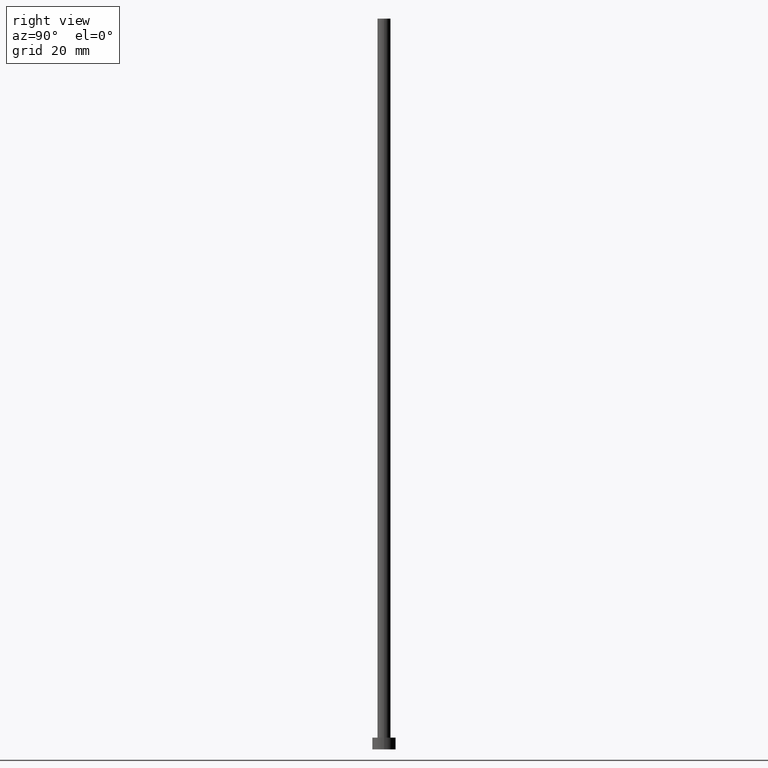
[diagram: clean part render]
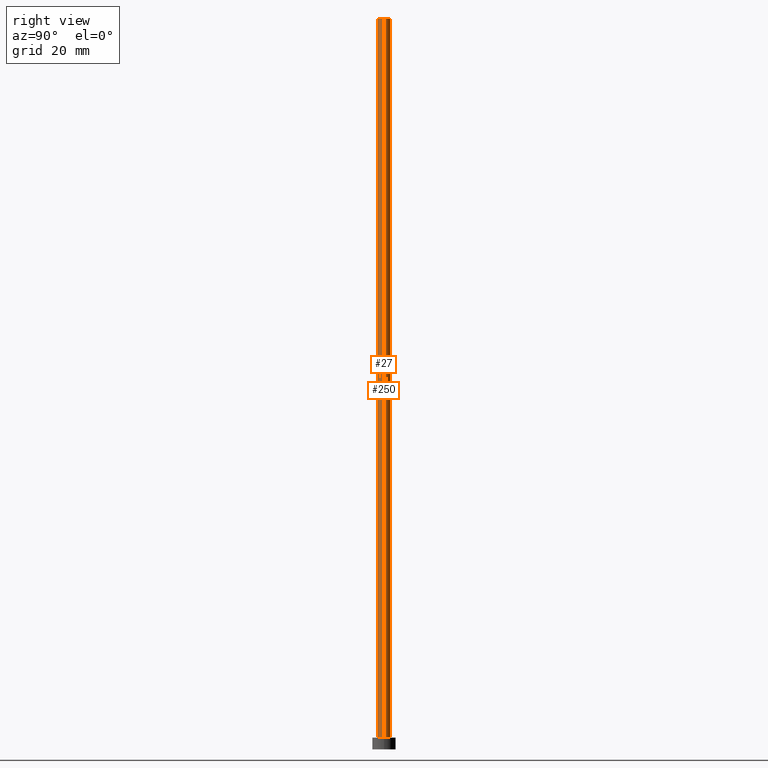
[diagram: same view with one multi-face feature highlighted, each face labeled with its STEP entity id]
A machine part, right view. The highlighted faces form ONE feature: a constant-radius fillet chain: 2 tangent blend faces with common blend radius 2.25 mm. The faces share edges in the B-rep.
Their STEP definitions:
[1] entity #27 (Cylinder):
#2 = LINE ( 'NONE', #218, #221 ) ;
#5 = ORIENTED_EDGE ( 'NONE', *, *, #186, .F. ) ;
#12 = EDGE_CURVE ( 'NONE', #191, #164, #29, .T. ) ;
#16 = CIRCLE ( 'NONE', #187, 2.250000000000000000 ) ;
#18 = VERTEX_POINT ( 'NONE', #127 ) ;
#27 = ADVANCED_FACE ( 'NONE', ( #76 ), #236, .T. ) ;
#29 = LINE ( 'NONE', #133, #193 ) ;
#39 = DIRECTION ( 'NONE',  ( -0.000000000000000000, -0.000000000000000000, -1.000000000000000000 ) ) ;
#48 = ORIENTED_EDGE ( 'NONE', *, *, #12, .T. ) ;
#64 = CARTESIAN_POINT ( 'NONE',  ( 0.000000000000000000, 0.000000000000000000, 4.000000000000000000 ) ) ;
#65 = VERTEX_POINT ( 'NONE', #184 ) ;
#71 = DIRECTION ( 'NONE',  ( -0.000000000000000000, -0.000000000000000000, -1.000000000000000000 ) ) ;
#76 = FACE_OUTER_BOUND ( 'NONE', #143, .T. ) ;
#80 = AXIS2_PLACEMENT_3D ( 'NONE', #214, #106, #176 ) ;
#106 = DIRECTION ( 'NONE',  ( -0.000000000000000000, -0.000000000000000000, -1.000000000000000000 ) ) ;
#108 = AXIS2_PLACEMENT_3D ( 'NONE', #198, #159, #141 ) ;
#115 = CARTESIAN_POINT ( 'NONE',  ( -2.250000000000000000, 0.000000000000000000, 250.0000000000000000 ) ) ;
#116 = CIRCLE ( 'NONE', #108, 2.250000000000000000 ) ;
#127 = CARTESIAN_POINT ( 'NONE',  ( 2.250000000000000000, 2.755455298081544285E-16, 4.000000000000000000 ) ) ;
#133 = CARTESIAN_POINT ( 'NONE',  ( -2.250000000000000000, 0.000000000000000000, 250.0000000000000000 ) ) ;
#136 = DIRECTION ( 'NONE',  ( 1.000000000000000000, 0.000000000000000000, 0.000000000000000000 ) ) ;
#141 = DIRECTION ( 'NONE',  ( 1.000000000000000000, 0.000000000000000000, 0.000000000000000000 ) ) ;
#143 = EDGE_LOOP ( 'NONE', ( #173, #5, #48, #223 ) ) ;
#159 = DIRECTION ( 'NONE',  ( 0.000000000000000000, 0.000000000000000000, 1.000000000000000000 ) ) ;
#164 = VERTEX_POINT ( 'NONE', #178 ) ;
#173 = ORIENTED_EDGE ( 'NONE', *, *, #232, .F. ) ;
#176 = DIRECTION ( 'NONE',  ( -1.000000000000000000, 0.000000000000000000, 0.000000000000000000 ) ) ;
#178 = CARTESIAN_POINT ( 'NONE',  ( -2.250000000000000000, 0.000000000000000000, 4.000000000000000000 ) ) ;
#184 = CARTESIAN_POINT ( 'NONE',  ( 2.250000000000000000, 2.755455298081544285E-16, 250.0000000000000000 ) ) ;
#186 = EDGE_CURVE ( 'NONE', #191, #65, #116, .T. ) ;
#187 = AXIS2_PLACEMENT_3D ( 'NONE', #64, #201, #136 ) ;
#191 = VERTEX_POINT ( 'NONE', #115 ) ;
#193 = VECTOR ( 'NONE', #71, 1000.000000000000000 ) ;
#198 = CARTESIAN_POINT ( 'NONE',  ( 0.000000000000000000, 0.000000000000000000, 250.0000000000000000 ) ) ;
#201 = DIRECTION ( 'NONE',  ( 0.000000000000000000, 0.000000000000000000, 1.000000000000000000 ) ) ;
#214 = CARTESIAN_POINT ( 'NONE',  ( 0.000000000000000000, 0.000000000000000000, 250.0000000000000000 ) ) ;
#218 = CARTESIAN_POINT ( 'NONE',  ( 2.250000000000000000, 2.755455298081544285E-16, 250.0000000000000000 ) ) ;
#221 = VECTOR ( 'NONE', #39, 1000.000000000000000 ) ;
#223 = ORIENTED_EDGE ( 'NONE', *, *, #225, .T. ) ;
#225 = EDGE_CURVE ( 'NONE', #164, #18, #16, .T. ) ;
#232 = EDGE_CURVE ( 'NONE', #65, #18, #2, .T. ) ;
#236 = CYLINDRICAL_SURFACE ( 'NONE', #80, 2.250000000000000000 ) ;
[2] entity #250 (Cylinder):
#2 = LINE ( 'NONE', #218, #221 ) ;
#9 = CARTESIAN_POINT ( 'NONE',  ( 0.000000000000000000, 0.000000000000000000, 250.0000000000000000 ) ) ;
#12 = EDGE_CURVE ( 'NONE', #191, #164, #29, .T. ) ;
#18 = VERTEX_POINT ( 'NONE', #127 ) ;
#23 = CYLINDRICAL_SURFACE ( 'NONE', #148, 2.250000000000000000 ) ;
#29 = LINE ( 'NONE', #133, #193 ) ;
#30 = ORIENTED_EDGE ( 'NONE', *, *, #36, .F. ) ;
#36 = EDGE_CURVE ( 'NONE', #65, #191, #70, .T. ) ;
#39 = DIRECTION ( 'NONE',  ( -0.000000000000000000, -0.000000000000000000, -1.000000000000000000 ) ) ;
#43 = ORIENTED_EDGE ( 'NONE', *, *, #12, .F. ) ;
#49 = EDGE_CURVE ( 'NONE', #18, #164, #100, .T. ) ;
#56 = AXIS2_PLACEMENT_3D ( 'NONE', #249, #74, #149 ) ;
#61 = DIRECTION ( 'NONE',  ( -0.000000000000000000, -0.000000000000000000, -1.000000000000000000 ) ) ;
#65 = VERTEX_POINT ( 'NONE', #184 ) ;
#70 = CIRCLE ( 'NONE', #243, 2.250000000000000000 ) ;
#71 = DIRECTION ( 'NONE',  ( -0.000000000000000000, -0.000000000000000000, -1.000000000000000000 ) ) ;
#74 = DIRECTION ( 'NONE',  ( 0.000000000000000000, 0.000000000000000000, 1.000000000000000000 ) ) ;
#79 = FACE_OUTER_BOUND ( 'NONE', #242, .T. ) ;
#83 = ORIENTED_EDGE ( 'NONE', *, *, #49, .T. ) ;
#90 = DIRECTION ( 'NONE',  ( 1.000000000000000000, 0.000000000000000000, 0.000000000000000000 ) ) ;
#100 = CIRCLE ( 'NONE', #56, 2.250000000000000000 ) ;
#115 = CARTESIAN_POINT ( 'NONE',  ( -2.250000000000000000, 0.000000000000000000, 250.0000000000000000 ) ) ;
#120 = DIRECTION ( 'NONE',  ( -1.000000000000000000, 0.000000000000000000, 0.000000000000000000 ) ) ;
#127 = CARTESIAN_POINT ( 'NONE',  ( 2.250000000000000000, 2.755455298081544285E-16, 4.000000000000000000 ) ) ;
#133 = CARTESIAN_POINT ( 'NONE',  ( -2.250000000000000000, 0.000000000000000000, 250.0000000000000000 ) ) ;
#148 = AXIS2_PLACEMENT_3D ( 'NONE', #241, #61, #120 ) ;
#149 = DIRECTION ( 'NONE',  ( 1.000000000000000000, 0.000000000000000000, 0.000000000000000000 ) ) ;
#163 = ORIENTED_EDGE ( 'NONE', *, *, #232, .T. ) ;
#164 = VERTEX_POINT ( 'NONE', #178 ) ;
#178 = CARTESIAN_POINT ( 'NONE',  ( -2.250000000000000000, 0.000000000000000000, 4.000000000000000000 ) ) ;
#184 = CARTESIAN_POINT ( 'NONE',  ( 2.250000000000000000, 2.755455298081544285E-16, 250.0000000000000000 ) ) ;
#191 = VERTEX_POINT ( 'NONE', #115 ) ;
#193 = VECTOR ( 'NONE', #71, 1000.000000000000000 ) ;
#218 = CARTESIAN_POINT ( 'NONE',  ( 2.250000000000000000, 2.755455298081544285E-16, 250.0000000000000000 ) ) ;
#221 = VECTOR ( 'NONE', #39, 1000.000000000000000 ) ;
#232 = EDGE_CURVE ( 'NONE', #65, #18, #2, .T. ) ;
#241 = CARTESIAN_POINT ( 'NONE',  ( 0.000000000000000000, 0.000000000000000000, 250.0000000000000000 ) ) ;
#242 = EDGE_LOOP ( 'NONE', ( #30, #163, #83, #43 ) ) ;
#243 = AXIS2_PLACEMENT_3D ( 'NONE', #9, #247, #90 ) ;
#247 = DIRECTION ( 'NONE',  ( 0.000000000000000000, 0.000000000000000000, 1.000000000000000000 ) ) ;
#249 = CARTESIAN_POINT ( 'NONE',  ( 0.000000000000000000, 0.000000000000000000, 4.000000000000000000 ) ) ;
#250 = ADVANCED_FACE ( 'NONE', ( #79 ), #23, .T. ) ;